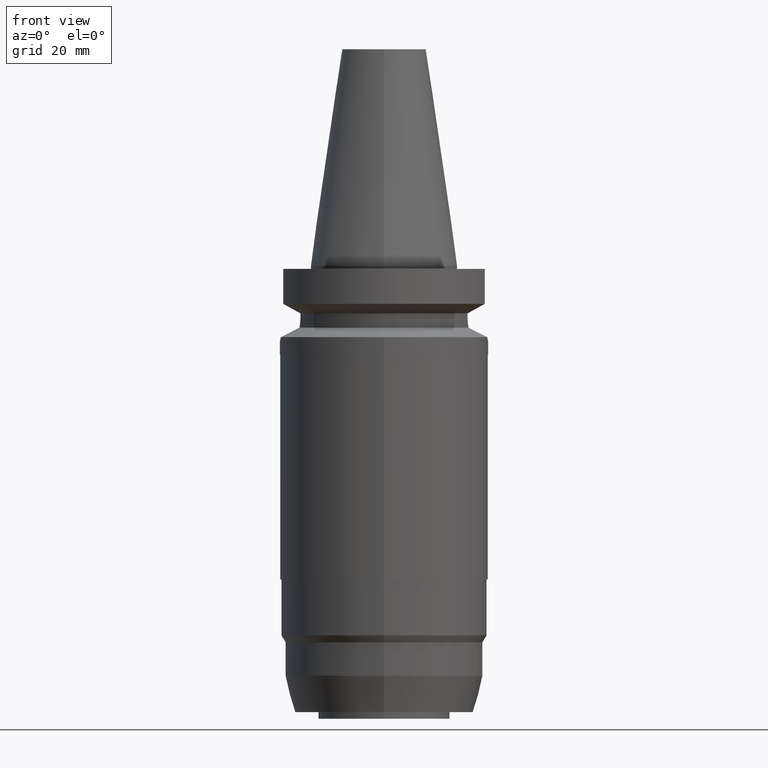
[diagram: clean part render]
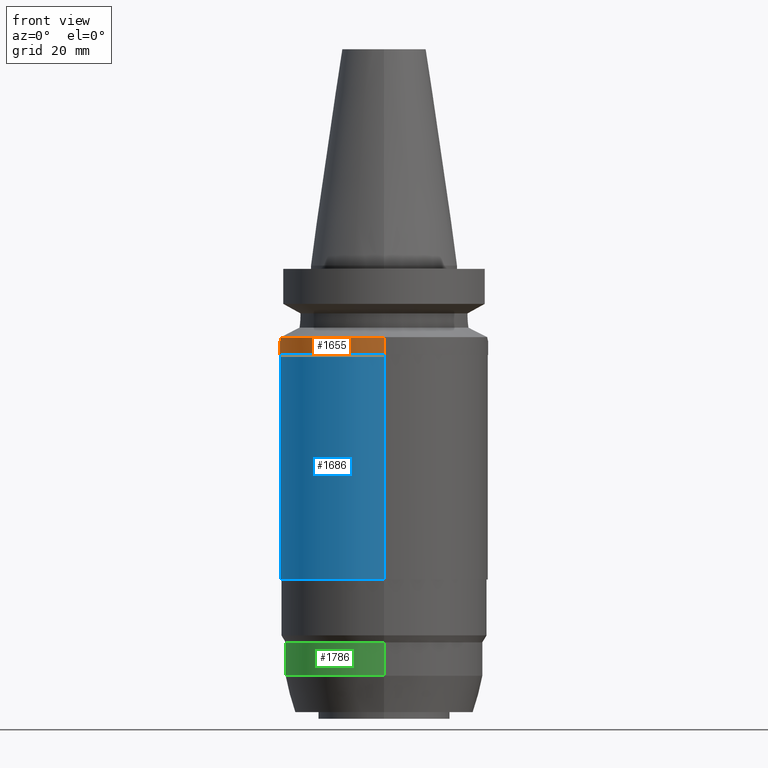
[diagram: same view with three faces highlighted in distinct colors, each labeled with its STEP entity id]
A machine part, front view with three faces highlighted in distinct colors.
Their STEP definitions:

[orange] entity #1655 — the highlighted cylindrical surface (partial cylindrical patch) has radius 31.5 mm, axis along (0, 0, -1).
#458=CARTESIAN_POINT('',(-3.117899877609E1,-4.485536235554E0,
-2.163449434733E1));
#504=CARTESIAN_POINT('',(0.E0,0.E0,-2.163449434733E1));
#505=DIRECTION('',(0.E0,0.E0,-1.E0));
#506=DIRECTION('',(0.E0,-1.E0,0.E0));
#507=AXIS2_PLACEMENT_3D('',#504,#505,#506);
#546=DIRECTION('',(0.E0,1.099151708819E-13,-1.E0));
#547=VECTOR('',#546,5.365505652669E0);
#548=CARTESIAN_POINT('',(0.E0,3.15E1,-2.163449434733E1));
#549=LINE('',#548,#547);
#560=CARTESIAN_POINT('',(-3.117899877609E1,4.485536235554E0,-2.163449434733E1));
#565=CARTESIAN_POINT('',(0.E0,0.E0,-2.163449434733E1));
#566=DIRECTION('',(0.E0,0.E0,-1.E0));
#567=DIRECTION('',(-9.898094849553E-1,1.423979757319E-1,0.E0));
#568=AXIS2_PLACEMENT_3D('',#565,#566,#567);
#607=CARTESIAN_POINT('',(-3.117899877609E1,4.485536235554E0,-2.163449434733E1));
#608=CARTESIAN_POINT('',(-3.125758072304E1,3.939312484574E0,-2.200103013904E1));
#609=CARTESIAN_POINT('',(-3.139261492805E1,2.797834037500E0,-2.257699109906E1));
#610=CARTESIAN_POINT('',(-3.150507135618E1,9.439074662061E-1,
-2.302018781410E1));
#611=CARTESIAN_POINT('',(-3.150408832850E1,-9.724472448912E-1,
-2.301641485238E1));
#612=CARTESIAN_POINT('',(-3.139073449818E1,-2.815725758116E0,
-2.256928971780E1));
#613=CARTESIAN_POINT('',(-3.125667710255E1,-3.945593557938E0,
-2.199681531280E1));
#614=CARTESIAN_POINT('',(-3.117899877609E1,-4.485536235554E0,
-2.163449434733E1));
#619=DIRECTION('',(0.E0,-1.105773104655E-13,-1.E0));
#620=VECTOR('',#619,5.365505652669E0);
#621=CARTESIAN_POINT('',(0.E0,-3.15E1,-2.163449434733E1));
#622=LINE('',#621,#620);
#634=CARTESIAN_POINT('',(0.E0,2.149500061863E-14,-2.7E1));
#635=DIRECTION('',(0.E0,0.E0,1.E0));
#636=DIRECTION('',(0.E0,1.E0,0.E0));
#637=AXIS2_PLACEMENT_3D('',#634,#635,#636);
#1144=CARTESIAN_POINT('',(0.E0,-3.15E1,-2.7E1));
#1145=CARTESIAN_POINT('',(0.E0,3.15E1,-2.7E1));
#1146=VERTEX_POINT('',#1144);
#1147=VERTEX_POINT('',#1145);
#1151=CARTESIAN_POINT('',(0.E0,3.15E1,-2.163449434733E1));
#1152=VERTEX_POINT('',#1151);
#1153=CARTESIAN_POINT('',(0.E0,-3.15E1,-2.163449434733E1));
#1154=VERTEX_POINT('',#1153);
#1166=VERTEX_POINT('',#458);
#1171=VERTEX_POINT('',#560);
#1641=CARTESIAN_POINT('',(0.E0,2.149500061863E-14,7.552E1));
#1642=DIRECTION('',(0.E0,0.E0,-1.E0));
#1643=DIRECTION('',(0.E0,-1.E0,0.E0));
#1644=AXIS2_PLACEMENT_3D('',#1641,#1642,#1643);
#1645=CYLINDRICAL_SURFACE('',#1644,3.15E1);
#1646=ORIENTED_EDGE('',*,*,#1556,.T.);
#1647=ORIENTED_EDGE('',*,*,#1581,.F.);
#1648=ORIENTED_EDGE('',*,*,#1620,.T.);
#1650=ORIENTED_EDGE('',*,*,#1649,.F.);
#1651=ORIENTED_EDGE('',*,*,#1616,.F.);
#1652=ORIENTED_EDGE('',*,*,#1632,.F.);
#1653=EDGE_LOOP('',(#1646,#1647,#1648,#1650,#1651,#1652));
#1654=FACE_OUTER_BOUND('',#1653,.F.);
#508=CIRCLE('',#507,3.15E1);
#569=CIRCLE('',#568,3.15E1);
#615=B_SPLINE_CURVE_WITH_KNOTS('',3,(#607,#608,#609,#610,#611,#612,#613,#614),
.UNSPECIFIED.,.F.,.F.,(4,1,1,1,1,4),(0.E0,2.E-1,4.E-1,6.E-1,8.E-1,1.E0),
.UNSPECIFIED.);
#638=CIRCLE('',#637,3.15E1);
#1556=EDGE_CURVE('',#1171,#1166,#615,.T.);
#1581=EDGE_CURVE('',#1154,#1166,#508,.T.);
#1616=EDGE_CURVE('',#1152,#1147,#549,.T.);
#1620=EDGE_CURVE('',#1154,#1146,#622,.T.);
#1632=EDGE_CURVE('',#1171,#1152,#569,.T.);
#1649=EDGE_CURVE('',#1147,#1146,#638,.T.);
#1655=ADVANCED_FACE('',(#1654),#1645,.T.);

[blue] entity #1686 — the highlighted cylindrical surface (partial cylindrical patch) has radius 31.35 mm, axis along (0, 0, -1).
#642=CARTESIAN_POINT('',(0.E0,2.149500061863E-14,-2.7E1));
#643=DIRECTION('',(0.E0,0.E0,-1.E0));
#644=DIRECTION('',(0.E0,-1.E0,0.E0));
#645=AXIS2_PLACEMENT_3D('',#642,#643,#644);
#658=DIRECTION('',(0.E0,0.E0,-1.E0));
#659=VECTOR('',#658,6.79E1);
#660=CARTESIAN_POINT('',(0.E0,-3.135E1,-2.7E1));
#661=LINE('',#660,#659);
#665=DIRECTION('',(0.E0,0.E0,-1.E0));
#666=VECTOR('',#665,6.79E1);
#667=CARTESIAN_POINT('',(0.E0,3.135E1,-2.7E1));
#668=LINE('',#667,#666);
#680=CARTESIAN_POINT('',(0.E0,2.149500061863E-14,-9.49E1));
#681=DIRECTION('',(0.E0,0.E0,1.E0));
#682=DIRECTION('',(0.E0,1.E0,0.E0));
#683=AXIS2_PLACEMENT_3D('',#680,#681,#682);
#1136=CARTESIAN_POINT('',(0.E0,-3.135E1,-9.49E1));
#1137=CARTESIAN_POINT('',(0.E0,3.135E1,-9.49E1));
#1138=VERTEX_POINT('',#1136);
#1139=VERTEX_POINT('',#1137);
#1140=CARTESIAN_POINT('',(0.E0,3.135E1,-2.7E1));
#1141=VERTEX_POINT('',#1140);
#1142=CARTESIAN_POINT('',(0.E0,-3.135E1,-2.7E1));
#1143=VERTEX_POINT('',#1142);
#1672=CARTESIAN_POINT('',(0.E0,2.149500061863E-14,7.552E1));
#1673=DIRECTION('',(0.E0,0.E0,-1.E0));
#1674=DIRECTION('',(0.E0,-1.E0,0.E0));
#1675=AXIS2_PLACEMENT_3D('',#1672,#1673,#1674);
#1676=CYLINDRICAL_SURFACE('',#1675,3.135E1);
#1678=ORIENTED_EDGE('',*,*,#1677,.F.);
#1679=ORIENTED_EDGE('',*,*,#1665,.F.);
#1681=ORIENTED_EDGE('',*,*,#1680,.T.);
#1683=ORIENTED_EDGE('',*,*,#1682,.F.);
#1684=EDGE_LOOP('',(#1678,#1679,#1681,#1683));
#1685=FACE_OUTER_BOUND('',#1684,.F.);
#646=CIRCLE('',#645,3.135E1);
#684=CIRCLE('',#683,3.135E1);
#1665=EDGE_CURVE('',#1143,#1141,#646,.T.);
#1677=EDGE_CURVE('',#1141,#1139,#668,.T.);
#1680=EDGE_CURVE('',#1143,#1138,#661,.T.);
#1682=EDGE_CURVE('',#1139,#1138,#684,.T.);
#1686=ADVANCED_FACE('',(#1685),#1676,.T.);

[green] entity #1786 — the highlighted cylindrical surface (partial cylindrical patch) has radius 29.95 mm, axis along (0, 0, -1).
#756=CARTESIAN_POINT('',(0.E0,0.E0,-1.139E2));
#757=DIRECTION('',(0.E0,0.E0,-1.E0));
#758=DIRECTION('',(0.E0,-1.E0,0.E0));
#759=AXIS2_PLACEMENT_3D('',#756,#757,#758);
#764=DIRECTION('',(0.E0,7.960189163494E-13,-1.E0));
#765=VECTOR('',#764,1.01E1);
#766=CARTESIAN_POINT('',(0.E0,-2.995000000001E1,-1.139E2));
#767=LINE('',#766,#765);
#771=DIRECTION('',(0.E0,-7.960189163494E-13,-1.E0));
#772=VECTOR('',#771,1.01E1);
#773=CARTESIAN_POINT('',(0.E0,2.995000000001E1,-1.139E2));
#774=LINE('',#773,#772);
#793=CARTESIAN_POINT('',(0.E0,0.E0,-1.24E2));
#794=DIRECTION('',(0.E0,0.E0,1.E0));
#795=DIRECTION('',(0.E0,1.E0,0.E0));
#796=AXIS2_PLACEMENT_3D('',#793,#794,#795);
#1120=CARTESIAN_POINT('',(0.E0,2.995E1,-1.24E2));
#1121=VERTEX_POINT('',#1120);
#1122=CARTESIAN_POINT('',(0.E0,-2.995E1,-1.24E2));
#1123=VERTEX_POINT('',#1122);
#1124=CARTESIAN_POINT('',(0.E0,2.995000000001E1,-1.139E2));
#1125=VERTEX_POINT('',#1124);
#1126=CARTESIAN_POINT('',(0.E0,-2.995000000002E1,-1.139E2));
#1127=VERTEX_POINT('',#1126);
#1772=CARTESIAN_POINT('',(0.E0,2.149500061863E-14,7.552E1));
#1773=DIRECTION('',(0.E0,0.E0,-1.E0));
#1774=DIRECTION('',(0.E0,-1.E0,0.E0));
#1775=AXIS2_PLACEMENT_3D('',#1772,#1773,#1774);
#1776=CYLINDRICAL_SURFACE('',#1775,2.995E1);
#1778=ORIENTED_EDGE('',*,*,#1777,.F.);
#1779=ORIENTED_EDGE('',*,*,#1767,.F.);
#1781=ORIENTED_EDGE('',*,*,#1780,.T.);
#1783=ORIENTED_EDGE('',*,*,#1782,.F.);
#1784=EDGE_LOOP('',(#1778,#1779,#1781,#1783));
#1785=FACE_OUTER_BOUND('',#1784,.F.);
#760=CIRCLE('',#759,2.995000000002E1);
#797=CIRCLE('',#796,2.995E1);
#1767=EDGE_CURVE('',#1127,#1125,#760,.T.);
#1777=EDGE_CURVE('',#1125,#1121,#774,.T.);
#1780=EDGE_CURVE('',#1127,#1123,#767,.T.);
#1782=EDGE_CURVE('',#1121,#1123,#797,.T.);
#1786=ADVANCED_FACE('',(#1785),#1776,.T.);